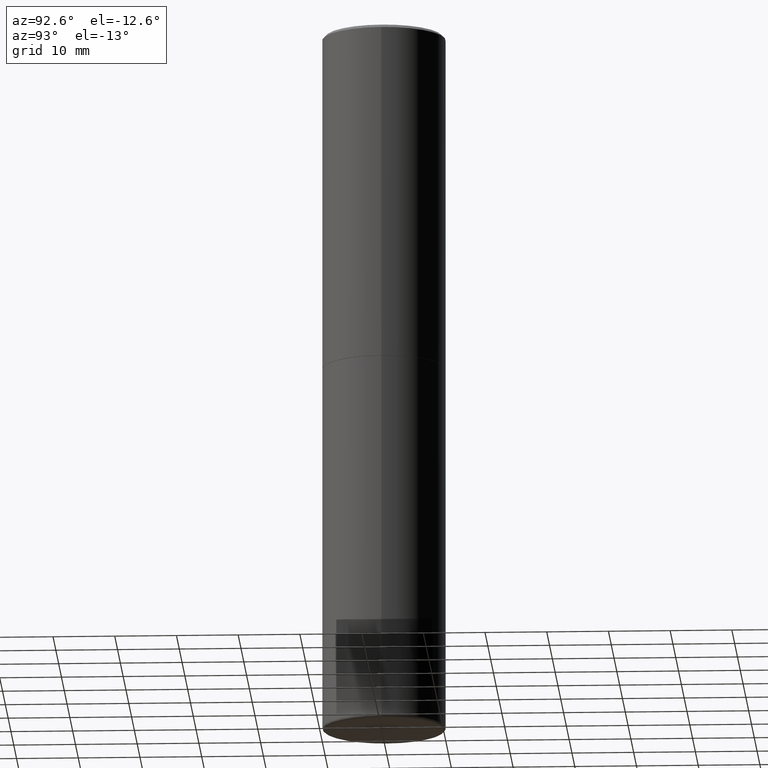
[diagram: clean part render]
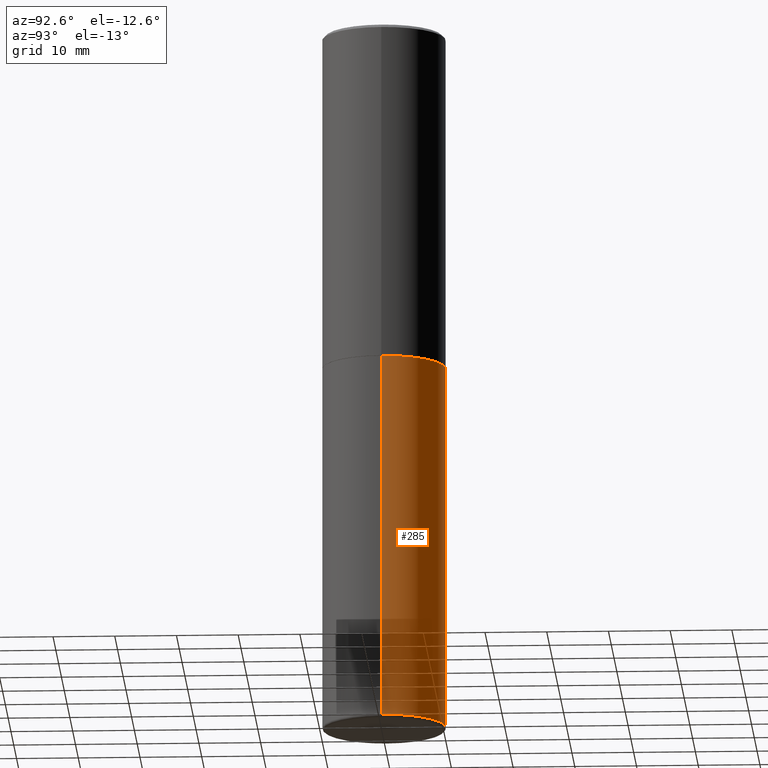
[diagram: same view with one face highlighted and labeled with its STEP entity id]
A machine part, auxiliary view. The second image highlights one B-rep face of the part: STEP entity #285.
In plain terms, the highlighted cylindrical surface (partial cylindrical patch) has radius 10 mm, axis along (-0, 0, 1).
Its self-contained STEP definition (entity closure, byte-faithful):
#14 = DIRECTION ( 'NONE',  ( 1.000000000000000000, -6.982962677686269866E-15, 0.000000000000000000 ) ) ;
#16 = VERTEX_POINT ( 'NONE', #392 ) ;
#22 = AXIS2_PLACEMENT_3D ( 'NONE', #41, #52, #214 ) ;
#25 = EDGE_CURVE ( 'NONE', #185, #179, #264, .T. ) ;
#39 = DIRECTION ( 'NONE',  ( -2.445468806185136877E-29, 3.491481338843145188E-15, 1.000000000000000000 ) ) ;
#41 = CARTESIAN_POINT ( 'NONE',  ( 5.295418152913293224E-29, -7.560453691130945845E-15, -2.165399999999999547 ) ) ;
#44 = DIRECTION ( 'NONE',  ( 1.000000000000000000, -6.982962677686266711E-15, 4.876176775795935793E-29 ) ) ;
#50 = ORIENTED_EDGE ( 'NONE', *, *, #25, .T. ) ;
#52 = DIRECTION ( 'NONE',  ( -2.445468806185136597E-29, 3.491481338843145583E-15, 1.000000000000000000 ) ) ;
#53 = ORIENTED_EDGE ( 'NONE', *, *, #257, .F. ) ;
#73 = DIRECTION ( 'NONE',  ( -2.445468806185136597E-29, 3.491481338843145583E-15, 1.000000000000000000 ) ) ;
#80 = CARTESIAN_POINT ( 'NONE',  ( -0.3936999999999999389, -1.294184197668350187E-14, -4.507899999999999352 ) ) ;
#97 = EDGE_CURVE ( 'NONE', #145, #185, #122, .T. ) ;
#100 = CARTESIAN_POINT ( 'NONE',  ( -0.3936999999999999389, 2.797406750687513998E-15, -1.936584745033356455E-29 ) ) ;
#108 = CARTESIAN_POINT ( 'NONE',  ( 1.102392883140197736E-28, -1.573924872737101586E-14, -4.507899999999999352 ) ) ;
#122 = CIRCLE ( 'NONE', #213, 0.3936999999999999389 ) ;
#128 = VECTOR ( 'NONE', #400, 39.37007874015748143 ) ;
#145 = VERTEX_POINT ( 'NONE', #306 ) ;
#179 = VERTEX_POINT ( 'NONE', #346 ) ;
#181 = CARTESIAN_POINT ( 'NONE',  ( 0.3936999999999999389, -2.749192406205082822E-15, 1.919750796630859611E-29 ) ) ;
#185 = VERTEX_POINT ( 'NONE', #80 ) ;
#192 = AXIS2_PLACEMENT_3D ( 'NONE', #339, #73, #44 ) ;
#209 = CYLINDRICAL_SURFACE ( 'NONE', #192, 0.3936999999999999389 ) ;
#213 = AXIS2_PLACEMENT_3D ( 'NONE', #108, #401, #14 ) ;
#214 = DIRECTION ( 'NONE',  ( 1.000000000000000000, -6.982962677686265133E-15, 0.000000000000000000 ) ) ;
#220 = CIRCLE ( 'NONE', #22, 0.3937000000000000499 ) ;
#240 = LINE ( 'NONE', #181, #128 ) ;
#253 = ORIENTED_EDGE ( 'NONE', *, *, #97, .T. ) ;
#257 = EDGE_CURVE ( 'NONE', #16, #179, #220, .T. ) ;
#259 = EDGE_CURVE ( 'NONE', #145, #16, #240, .T. ) ;
#264 = LINE ( 'NONE', #100, #404 ) ;
#285 = ADVANCED_FACE ( 'NONE', ( #313 ), #209, .T. ) ;
#306 = CARTESIAN_POINT ( 'NONE',  ( 0.3936999999999999389, -1.848844113357609908E-14, -4.507899999999999352 ) ) ;
#313 = FACE_OUTER_BOUND ( 'NONE', #406, .T. ) ;
#339 = CARTESIAN_POINT ( 'NONE',  ( 0.000000000000000000, 0.000000000000000000, 0.000000000000000000 ) ) ;
#346 = CARTESIAN_POINT ( 'NONE',  ( -0.3937000000000000499, -8.852444458563466857E-15, -2.165399999999999547 ) ) ;
#392 = CARTESIAN_POINT ( 'NONE',  ( 0.3937000000000000499, -1.030964609733602906E-14, -2.165399999999999547 ) ) ;
#400 = DIRECTION ( 'NONE',  ( -2.445468806185136877E-29, 3.491481338843145188E-15, 1.000000000000000000 ) ) ;
#401 = DIRECTION ( 'NONE',  ( -2.445468806185136597E-29, 3.491481338843145583E-15, 1.000000000000000000 ) ) ;
#404 = VECTOR ( 'NONE', #39, 39.37007874015748143 ) ;
#405 = ORIENTED_EDGE ( 'NONE', *, *, #259, .F. ) ;
#406 = EDGE_LOOP ( 'NONE', ( #253, #50, #53, #405 ) ) ;